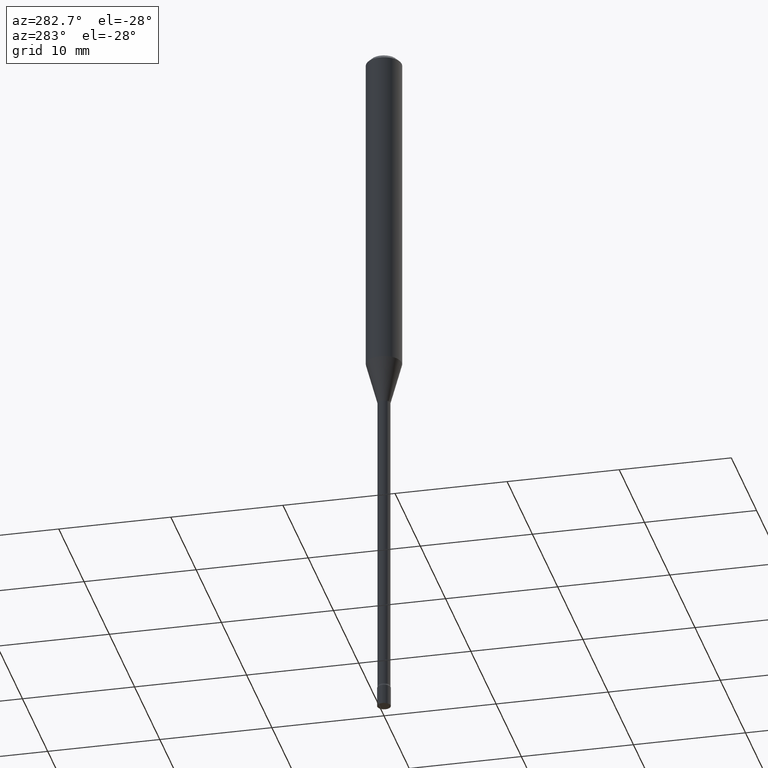
[diagram: clean part render]
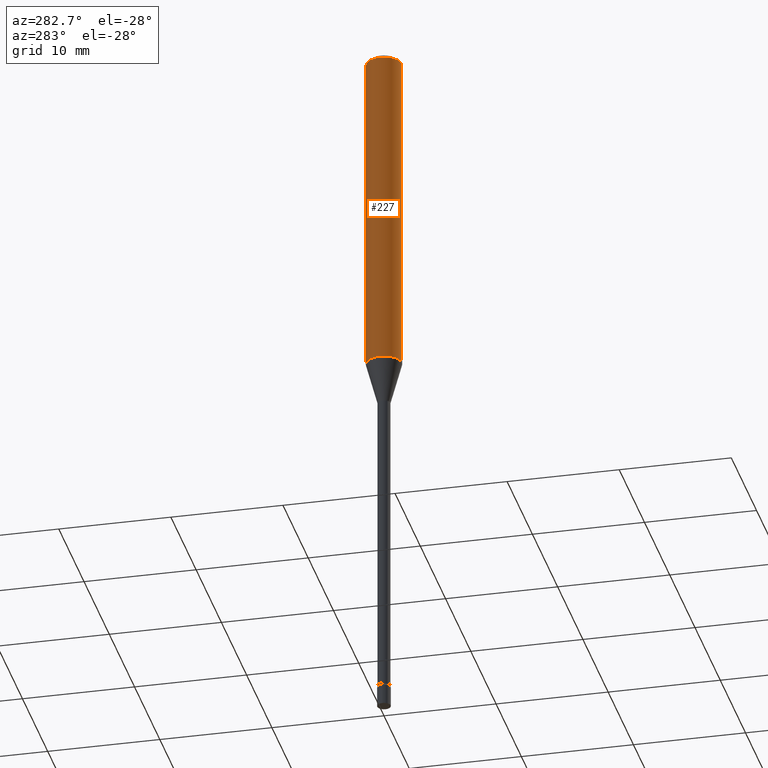
[diagram: same view with one face highlighted and labeled with its STEP entity id]
A machine part, auxiliary view. The second image highlights one B-rep face of the part: STEP entity #227.
In plain terms, the highlighted cylindrical surface (edge-blend (fillet) strip) has radius 1.5875 mm, axis along (-0, 0, 1).
Its self-contained STEP definition (entity closure, byte-faithful):
#5 = ORIENTED_EDGE ( 'NONE', *, *, #184, .T. ) ;
#18 = CIRCLE ( 'NONE', #136, 0.06250000000000000000 ) ;
#21 = EDGE_CURVE ( 'NONE', #337, #266, #84, .T. ) ;
#26 = VERTEX_POINT ( 'NONE', #280 ) ;
#29 = ORIENTED_EDGE ( 'NONE', *, *, #207, .F. ) ;
#30 = CARTESIAN_POINT ( 'NONE',  ( -4.364351673553916201E-16, -0.06250000000000000000, 2.182163987202850953E-16 ) ) ;
#69 = LINE ( 'NONE', #30, #203 ) ;
#82 = CARTESIAN_POINT ( 'NONE',  ( 2.871546515168501925E-29, -4.099762927148765252E-15, -1.174225147374217793 ) ) ;
#84 = CIRCLE ( 'NONE', #209, 0.06250000000000000000 ) ;
#96 = DIRECTION ( 'NONE',  ( -2.445482045406543342E-29, 3.491462379524561524E-15, 1.000000000000000000 ) ) ;
#103 = DIRECTION ( 'NONE',  ( -2.445482045406543342E-29, 3.491462379524561524E-15, 1.000000000000000000 ) ) ;
#114 = VERTEX_POINT ( 'NONE', #359 ) ;
#136 = AXIS2_PLACEMENT_3D ( 'NONE', #243, #361, #481 ) ;
#142 = CYLINDRICAL_SURFACE ( 'NONE', #150, 0.06250000000000000000 ) ;
#150 = AXIS2_PLACEMENT_3D ( 'NONE', #222, #96, #219 ) ;
#184 = EDGE_CURVE ( 'NONE', #266, #114, #69, .T. ) ;
#186 = VECTOR ( 'NONE', #103, 39.37007874015748143 ) ;
#195 = ORIENTED_EDGE ( 'NONE', *, *, #21, .T. ) ;
#202 = DIRECTION ( 'NONE',  ( -6.982962677686265922E-15, -1.000000000000000000, 4.370956789862821150E-15 ) ) ;
#203 = VECTOR ( 'NONE', #499, 39.37007874015748143 ) ;
#207 = EDGE_CURVE ( 'NONE', #337, #26, #334, .T. ) ;
#209 = AXIS2_PLACEMENT_3D ( 'NONE', #82, #242, #202 ) ;
#219 = DIRECTION ( 'NONE',  ( -6.982962677686265922E-15, -1.000000000000000000, 3.491462379524561524E-15 ) ) ;
#222 = CARTESIAN_POINT ( 'NONE',  ( 0.000000000000000000, 0.000000000000000000, 0.000000000000000000 ) ) ;
#227 = ADVANCED_FACE ( 'NONE', ( #454 ), #142, .T. ) ;
#242 = DIRECTION ( 'NONE',  ( -2.445482045406543342E-29, 3.491462379524561524E-15, 1.000000000000000000 ) ) ;
#243 = CARTESIAN_POINT ( 'NONE',  ( 3.668223068109822037E-31, -5.237193569286852393E-17, -0.01500000000000003067 ) ) ;
#266 = VERTEX_POINT ( 'NONE', #293 ) ;
#280 = CARTESIAN_POINT ( 'NONE',  ( 4.440892098500914096E-16, 0.06249999999999995143, -0.01500000000000024751 ) ) ;
#293 = CARTESIAN_POINT ( 'NONE',  ( -4.364351673553631225E-16, -0.06250000000000412170, -1.174225147374217570 ) ) ;
#303 = ORIENTED_EDGE ( 'NONE', *, *, #513, .F. ) ;
#334 = LINE ( 'NONE', #461, #186 ) ;
#337 = VERTEX_POINT ( 'NONE', #509 ) ;
#359 = CARTESIAN_POINT ( 'NONE',  ( -4.364351673553912750E-16, -0.06250000000000005551, -0.01499999999999981209 ) ) ;
#361 = DIRECTION ( 'NONE',  ( -2.445482045406543342E-29, 3.491462379524561524E-15, 1.000000000000000000 ) ) ;
#375 = EDGE_LOOP ( 'NONE', ( #29, #195, #5, #303 ) ) ;
#454 = FACE_OUTER_BOUND ( 'NONE', #375, .T. ) ;
#461 = CARTESIAN_POINT ( 'NONE',  ( 4.440892098500625669E-16, 0.06250000000000000000, -2.182163987202850953E-16 ) ) ;
#481 = DIRECTION ( 'NONE',  ( -6.982962677686265922E-15, -1.000000000000000000, 3.483106191921935554E-15 ) ) ;
#499 = DIRECTION ( 'NONE',  ( -2.445482045406543342E-29, 3.491462379524561524E-15, 1.000000000000000000 ) ) ;
#509 = CARTESIAN_POINT ( 'NONE',  ( 4.440892098500910152E-16, 0.06249999999999588524, -1.174225147374218237 ) ) ;
#513 = EDGE_CURVE ( 'NONE', #26, #114, #18, .T. ) ;